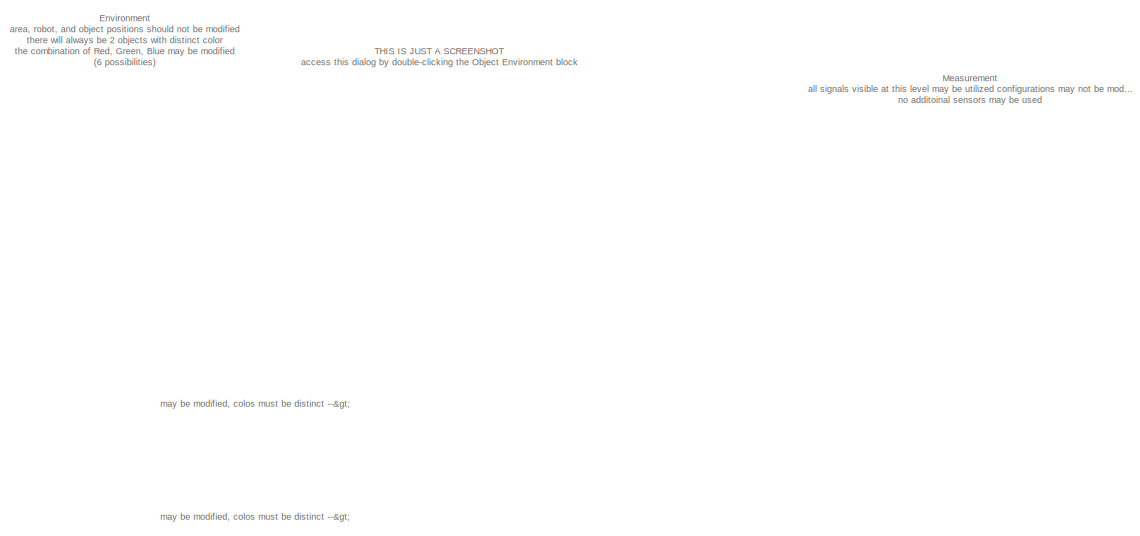
[diagram: root canvas - part 1/4, top center region]
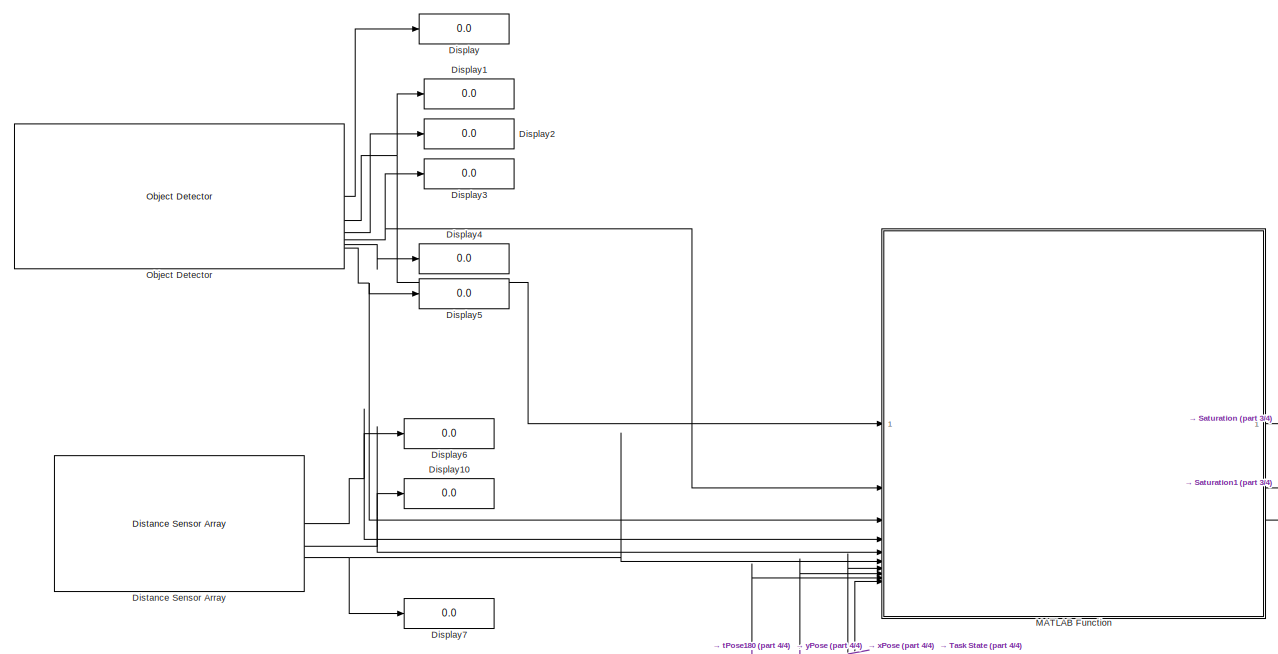
[diagram: root canvas - part 2/4, full width, middle band]
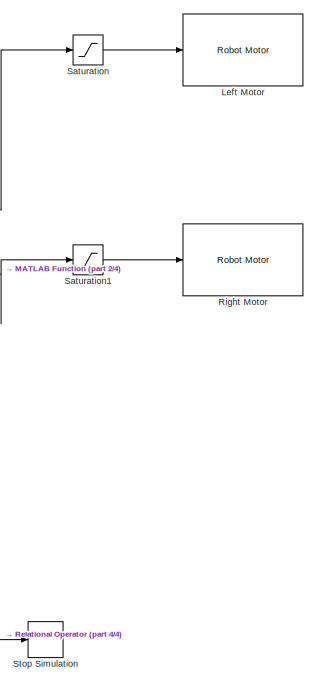
[diagram: root canvas - part 3/4, bottom right region]
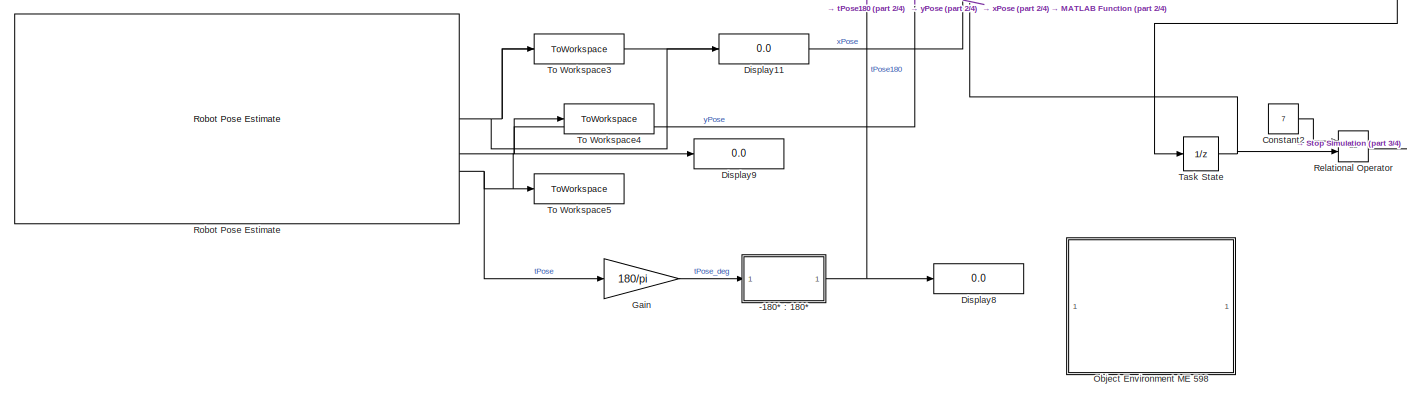
[diagram: root canvas - part 4/4, full width, bottom band]
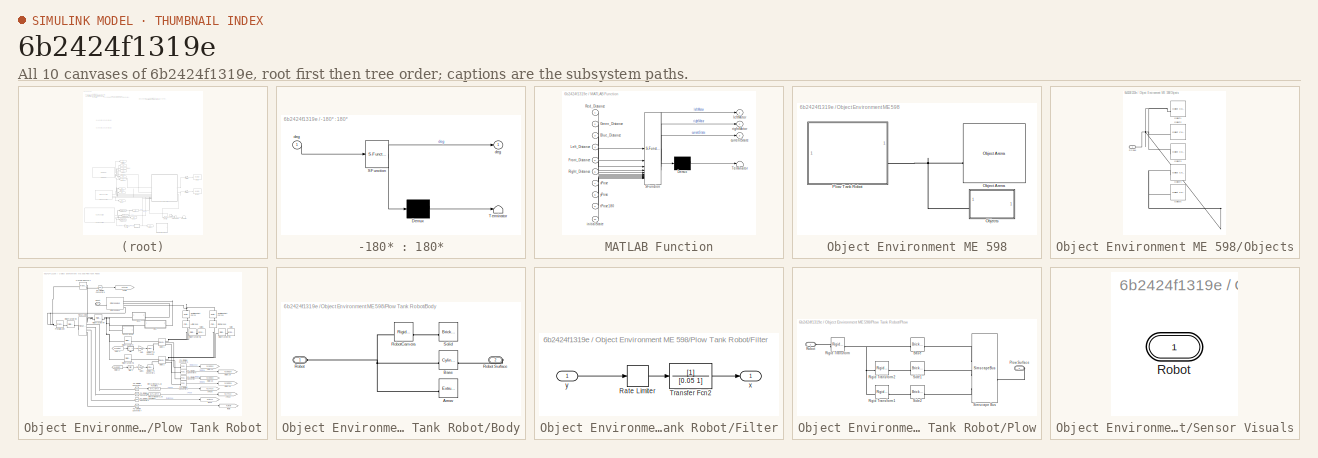
[diagram: thumbnail index - all 10 canvases of the model, root first then tree order]
MODEL slx_6b2424f1319e
KIND model
CONFIG AbsTol = auto
CONFIG EnableMultiTasking = off
CONFIG FixedStep = auto
CONFIG InitFcn = RPInit
CONFIG MaxStep = auto
CONFIG MinStep = auto
CONFIG RelTol = 1e-3
CONFIG SampleTimeConstraint = Unconstrained
CONFIG SolverName = ode23t
CONFIG StartTime = 0.0
CONFIG StopTime = inf
WORKSPACE source: mxarray member
WORKSPACE mapForSim: object (value not decoded)
WORKSPACE occGrid: robotics.BinaryOccupancyGrid (value not decoded)
BLOCK [SubSystem] -180* : 180*
  ErrorFcn = Stateflow.Translate.translate
  PermitHierarchicalResolution = ExplicitOnly
  SFBlockType = MATLAB Function
  TreatAsAtomicUnit = on
BLOCK [Demux] -180* : 180*/ Demux 
  Outputs = 1
BLOCK [S-Function] -180* : 180*/ SFunction 
  EnableBusSupport = on
  FunctionName = sf_sfun
  PortCounts = [1 2]
  SFcnIsStateOwnerBlock = off
  SFunctionDeploymentMode = off
  Tag = Stateflow S-Function 4
BLOCK [Terminator] -180* : 180*/ Terminator 
BLOCK [Outport] -180* : 180*/deg
BLOCK [Inport] -180* : 180*/deg 
BLOCK [Constant] Constant2
  Value = 7
BLOCK [Display] Display
  Decimation = 1
BLOCK [Display] Display1
  Decimation = 1
BLOCK [Display] Display10
  Decimation = 1
BLOCK [Display] Display11
  Decimation = 1
BLOCK [Display] Display2
  Decimation = 1
BLOCK [Display] Display3
  Decimation = 1
BLOCK [Display] Display4
  Decimation = 1
BLOCK [Display] Display5
  Decimation = 1
BLOCK [Display] Display6
  Decimation = 1
BLOCK [Display] Display7
  Decimation = 1
BLOCK [Display] Display8
  Decimation = 1
BLOCK [Display] Display9
  Decimation = 1
BLOCK [Reference] Distance Sensor Array  REF=ME598_ProjectLibrary/Distance Sensor Array
  SourceBlock = ME598_ProjectLibrary/Distance Sensor Array
  SourceType = Distance Sensor Array
BLOCK [Gain] Gain
  Gain = 180/pi
BLOCK [Reference] Left Motor  REF=RoboticsPlayground/Basic Sensors and Actuators/Robot Motor
  SourceBlock = RoboticsPlayground/Basic Sensors and Actuators/Robot Motor
  SourceProductName = Robotics Playground
  SourceType = RP Robot Motor
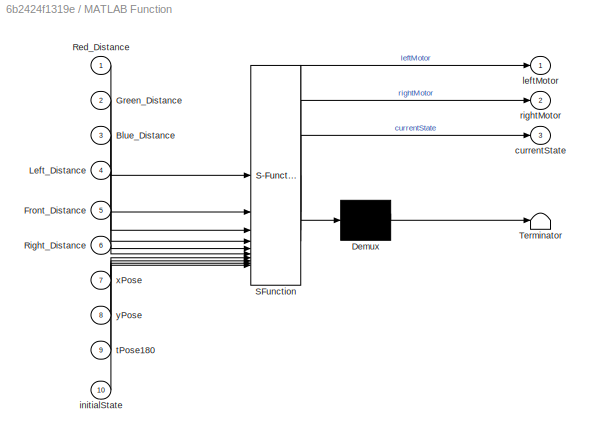
BLOCK [SubSystem] MATLAB Function
  ErrorFcn = Stateflow.Translate.translate
  PermitHierarchicalResolution = ExplicitOnly
  SFBlockType = MATLAB Function
  TreatAsAtomicUnit = on
BLOCK [Demux] MATLAB Function/ Demux 
  Outputs = 1
BLOCK [S-Function] MATLAB Function/ SFunction 
  EnableBusSupport = on
  FunctionName = sf_sfun
  PortCounts = [10 4]
  SFcnIsStateOwnerBlock = off
  SFunctionDeploymentMode = off
  Tag = Stateflow S-Function 2
BLOCK [Terminator] MATLAB Function/ Terminator 
BLOCK [Inport] MATLAB Function/Blue_Distance
  Port = 3
BLOCK [Inport] MATLAB Function/Front_Distance
  Port = 5
BLOCK [Inport] MATLAB Function/Green_Distance
  Port = 2
BLOCK [Inport] MATLAB Function/Left_Distance
  Port = 4
BLOCK [Inport] MATLAB Function/Red_Distance
BLOCK [Inport] MATLAB Function/Right_Distance
  Port = 6
BLOCK [Outport] MATLAB Function/currentState
  Port = 3
BLOCK [Inport] MATLAB Function/initialState
  Port = 10
BLOCK [Outport] MATLAB Function/leftMotor
BLOCK [Outport] MATLAB Function/rightMotor
  Port = 2
BLOCK [Inport] MATLAB Function/tPose180
  Port = 9
BLOCK [Inport] MATLAB Function/xPose
  Port = 7
BLOCK [Inport] MATLAB Function/yPose
  Port = 8
BLOCK [Reference] Object Detector  REF=ME598_ProjectLibrary/Object Detector
  SourceBlock = ME598_ProjectLibrary/Object Detector
  SourceType = Object Detector
BLOCK [SubSystem] Object Environment ME 598
  CopyFcn = set_param(gcs,'InitFcn','RPInit');\nset_param(gcs,'Solver','ode23t');\nset_param(gcs, 'EnablePacing', 'on')\nset_param(gcs, 'PacingRate', 1)
BLOCK [Reference] Object Environment ME 598/Object Arena  REF=RP_Simulator_Components/Object Arena
  SourceBlock = RP_Simulator_Components/Object Arena
  SourceType = RP Grid Arena
BLOCK [SubSystem] Object Environment ME 598/Objects
BLOCK [Reference] Object Environment ME 598/Objects/Object1  REF=RP_Simulator_Components/Object Contact-Plow Robot
  SourceBlock = RP_Simulator_Components/Object Contact-Plow Robot
  SourceType = RP Rectangle-Disc obstacle
BLOCK [Reference] Object Environment ME 598/Objects/Object2  REF=RP_Simulator_Components/Object Contact-Plow Robot
  Commented = on
  SourceBlock = RP_Simulator_Components/Object Contact-Plow Robot
  SourceType = RP Rectangle-Disc obstacle
BLOCK [Reference] Object Environment ME 598/Objects/Object3  REF=RP_Simulator_Components/Object Contact-Plow Robot
  SourceBlock = RP_Simulator_Components/Object Contact-Plow Robot
  SourceType = RP Rectangle-Disc obstacle
BLOCK [Reference] Object Environment ME 598/Objects/Object4  REF=RP_Simulator_Components/Object Contact-Plow Robot
  Commented = on
  SourceBlock = RP_Simulator_Components/Object Contact-Plow Robot
  SourceType = RP Rectangle-Disc obstacle
BLOCK [Reference] Object Environment ME 598/Objects/Object5  REF=RP_Simulator_Components/Object Contact-Plow Robot
  Commented = on
  SourceBlock = RP_Simulator_Components/Object Contact-Plow Robot
  SourceType = RP Rectangle-Disc obstacle
BLOCK [PMIOPort] Object Environment ME 598/Objects/RP-Bus
  Side = Left
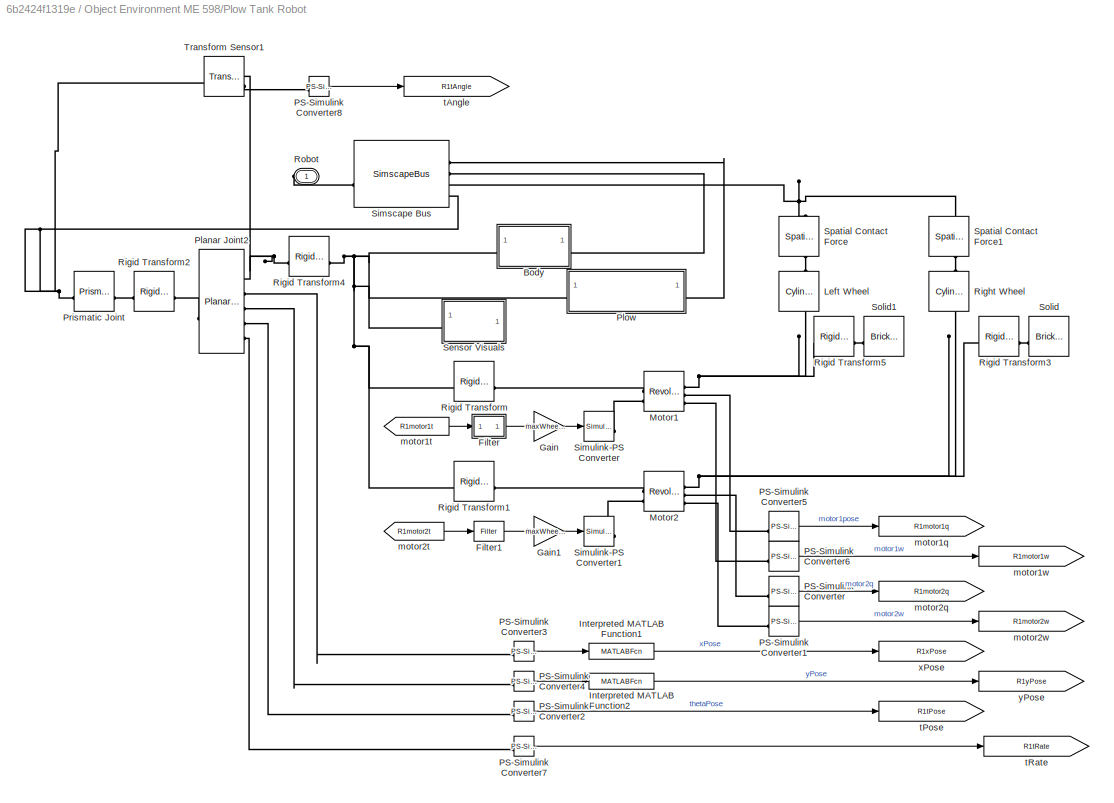
BLOCK [SubSystem] Object Environment ME 598/Plow Tank Robot
  AncestorBlock = RoboticsPlayground/Environments/Object Environment/Plow Tank Robot
BLOCK [SubSystem] Object Environment ME 598/Plow Tank Robot/Body
BLOCK [Reference] Object Environment ME 598/Plow Tank Robot/Body/Arrow  REF=sm_lib/Body Elements/Extruded Solid
  SourceBlock = sm_lib/Body Elements/Extruded Solid
  SourceType = Extruded Solid
BLOCK [Reference] Object Environment ME 598/Plow Tank Robot/Body/Base  REF=sm_lib/Body Elements/Cylindrical Solid
  SourceBlock = sm_lib/Body Elements/Cylindrical Solid
  SourceType = Cylindrical Solid
BLOCK [PMIOPort] Object Environment ME 598/Plow Tank Robot/Body/Robot
  Side = Left
BLOCK [PMIOPort] Object Environment ME 598/Plow Tank Robot/Body/Robot Surface
  Port = 2
  Side = Right
BLOCK [Reference] Object Environment ME 598/Plow Tank Robot/Body/RobotCamera  REF=sm_lib/Frames and
Transforms/Rigid
Transform
  SourceBlock = sm_lib/Frames and\nTransforms/Rigid\nTransform
  SourceType = Rigid\nTransform
BLOCK [Reference] Object Environment ME 598/Plow Tank Robot/Body/Solid  REF=sm_lib/Body Elements/Brick Solid
  SourceBlock = sm_lib/Body Elements/Brick Solid
  SourceType = Brick Solid
BLOCK [SubSystem] Object Environment ME 598/Plow Tank Robot/Filter
BLOCK [RateLimiter] Object Environment ME 598/Plow Tank Robot/Filter/Rate Limiter
  FallingSlewLimit = -300
  RisingSlewLimit = 300
  SampleTimeMode = inherited
BLOCK [TransferFcn] Object Environment ME 598/Plow Tank Robot/Filter/Transfer Fcn2
  Denominator = [0.05 1]
BLOCK [Outport] Object Environment ME 598/Plow Tank Robot/Filter/x
  VectorParamsAs1DForOutWhenUnconnected = off
BLOCK [Inport] Object Environment ME 598/Plow Tank Robot/Filter/y
BLOCK [Reference] Object Environment ME 598/Plow Tank Robot/Filter1  REF=RP_Simulator_Components/Contact Tank Robot/Filter
  SourceBlock = RP_Simulator_Components/Contact Tank Robot/Filter
  SourceType = SubSystem
BLOCK [Gain] Object Environment ME 598/Plow Tank Robot/Gain
  Gain = maxWheelTorque/127
BLOCK [Gain] Object Environment ME 598/Plow Tank Robot/Gain1
  Gain = maxWheelTorque/127
BLOCK [MATLABFcn] Object Environment ME 598/Plow Tank Robot/Interpreted MATLAB Function1
  MATLABFcn = u+floorSize(1)/2
BLOCK [MATLABFcn] Object Environment ME 598/Plow Tank Robot/Interpreted MATLAB Function2
  MATLABFcn = u+floorSize(2)/2
BLOCK [Reference] Object Environment ME 598/Plow Tank Robot/Left Wheel  REF=sm_lib/Body Elements/Cylindrical Solid
  NameLocation = right
  SourceBlock = sm_lib/Body Elements/Cylindrical Solid
  SourceType = Cylindrical Solid
BLOCK [Reference] Object Environment ME 598/Plow Tank Robot/Motor1  REF=sm_lib/Joints/Revolute Joint
  SourceBlock = sm_lib/Joints/Revolute Joint
  SourceType = Revolute Joint
BLOCK [Reference] Object Environment ME 598/Plow Tank Robot/Motor2  REF=sm_lib/Joints/Revolute Joint
  SourceBlock = sm_lib/Joints/Revolute Joint
  SourceType = Revolute Joint
BLOCK [Reference] Object Environment ME 598/Plow Tank Robot/PS-Simulink Converter  REF=nesl_utility/PS-Simulink
Converter
  SourceBlock = nesl_utility/PS-Simulink\nConverter
  SourceType = PS-Simulink\nConverter
BLOCK [Reference] Object Environment ME 598/Plow Tank Robot/PS-Simulink Converter1  REF=nesl_utility/PS-Simulink
Converter
  SourceBlock = nesl_utility/PS-Simulink\nConverter
  SourceType = PS-Simulink\nConverter
BLOCK [Reference] Object Environment ME 598/Plow Tank Robot/PS-Simulink Converter2  REF=nesl_utility/PS-Simulink
Converter
  SourceBlock = nesl_utility/PS-Simulink\nConverter
  SourceType = PS-Simulink\nConverter
BLOCK [Reference] Object Environment ME 598/Plow Tank Robot/PS-Simulink Converter3  REF=nesl_utility/PS-Simulink
Converter
  SourceBlock = nesl_utility/PS-Simulink\nConverter
  SourceType = PS-Simulink\nConverter
BLOCK [Reference] Object Environment ME 598/Plow Tank Robot/PS-Simulink Converter4  REF=nesl_utility/PS-Simulink
Converter
  SourceBlock = nesl_utility/PS-Simulink\nConverter
  SourceType = PS-Simulink\nConverter
BLOCK [Reference] Object Environment ME 598/Plow Tank Robot/PS-Simulink Converter5  REF=nesl_utility/PS-Simulink
Converter
  SourceBlock = nesl_utility/PS-Simulink\nConverter
  SourceType = PS-Simulink\nConverter
BLOCK [Reference] Object Environment ME 598/Plow Tank Robot/PS-Simulink Converter6  REF=nesl_utility/PS-Simulink
Converter
  SourceBlock = nesl_utility/PS-Simulink\nConverter
  SourceType = PS-Simulink\nConverter
BLOCK [Reference] Object Environment ME 598/Plow Tank Robot/PS-Simulink Converter7  REF=nesl_utility/PS-Simulink
Converter
  SourceBlock = nesl_utility/PS-Simulink\nConverter
  SourceType = PS-Simulink\nConverter
BLOCK [Reference] Object Environment ME 598/Plow Tank Robot/PS-Simulink Converter8  REF=nesl_utility/PS-Simulink
Converter
  SourceBlock = nesl_utility/PS-Simulink\nConverter
  SourceType = PS-Simulink\nConverter
BLOCK [Reference] Object Environment ME 598/Plow Tank Robot/Planar Joint2  REF=sm_lib/Joints/Planar Joint
  SourceBlock = sm_lib/Joints/Planar Joint
  SourceType = Planar Joint
BLOCK [SubSystem] Object Environment ME 598/Plow Tank Robot/Plow
BLOCK [Reference] Object Environment ME 598/Plow Tank Robot/Plow/Base  REF=sm_lib/Body Elements/Brick Solid
  SourceBlock = sm_lib/Body Elements/Brick Solid
  SourceType = Brick Solid
BLOCK [PMIOPort] Object Environment ME 598/Plow Tank Robot/Plow/Plow Surface
  Port = 2
  Side = Right
BLOCK [Reference] Object Environment ME 598/Plow Tank Robot/Plow/Rigid Transform  REF=sm_lib/Frames and
Transforms/Rigid
Transform
  SourceBlock = sm_lib/Frames and\nTransforms/Rigid\nTransform
  SourceType = Rigid\nTransform
BLOCK [Reference] Object Environment ME 598/Plow Tank Robot/Plow/Rigid Transform1  REF=sm_lib/Frames and
Transforms/Rigid
Transform
  SourceBlock = sm_lib/Frames and\nTransforms/Rigid\nTransform
  SourceType = Rigid\nTransform
BLOCK [Reference] Object Environment ME 598/Plow Tank Robot/Plow/Rigid Transform2  REF=sm_lib/Frames and
Transforms/Rigid
Transform
  SourceBlock = sm_lib/Frames and\nTransforms/Rigid\nTransform
  SourceType = Rigid\nTransform
BLOCK [PMIOPort] Object Environment ME 598/Plow Tank Robot/Plow/Robot
  Side = Left
BLOCK [Reference] Object Environment ME 598/Plow Tank Robot/Plow/Side1  REF=sm_lib/Body Elements/Brick Solid
  SourceBlock = sm_lib/Body Elements/Brick Solid
  SourceType = Brick Solid
BLOCK [Reference] Object Environment ME 598/Plow Tank Robot/Plow/Side2  REF=sm_lib/Body Elements/Brick Solid
  SourceBlock = sm_lib/Body Elements/Brick Solid
  SourceType = Brick Solid
BLOCK [SimscapeBus] Object Environment ME 598/Plow Tank Robot/Plow/Simscape Bus
  HierarchyStrings = Base;Side1;Side2
BLOCK [Reference] Object Environment ME 598/Plow Tank Robot/Prismatic Joint  REF=sm_lib/Joints/Prismatic
Joint
  SourceBlock = sm_lib/Joints/Prismatic\nJoint
  SourceType = Prismatic\nJoint
BLOCK [Reference] Object Environment ME 598/Plow Tank Robot/Right Wheel  REF=sm_lib/Body Elements/Cylindrical Solid
  NameLocation = right
  SourceBlock = sm_lib/Body Elements/Cylindrical Solid
  SourceType = Cylindrical Solid
BLOCK [Reference] Object Environment ME 598/Plow Tank Robot/Rigid Transform  REF=sm_lib/Frames and
Transforms/Rigid
Transform
  SourceBlock = sm_lib/Frames and\nTransforms/Rigid\nTransform
  SourceType = Rigid\nTransform
BLOCK [Reference] Object Environment ME 598/Plow Tank Robot/Rigid Transform1  REF=sm_lib/Frames and
Transforms/Rigid
Transform
  SourceBlock = sm_lib/Frames and\nTransforms/Rigid\nTransform
  SourceType = Rigid\nTransform
BLOCK [Reference] Object Environment ME 598/Plow Tank Robot/Rigid Transform2  REF=sm_lib/Frames and
Transforms/Rigid
Transform
  SourceBlock = sm_lib/Frames and\nTransforms/Rigid\nTransform
  SourceType = Rigid\nTransform
BLOCK [Reference] Object Environment ME 598/Plow Tank Robot/Rigid Transform3  REF=sm_lib/Frames and
Transforms/Rigid
Transform
  SourceBlock = sm_lib/Frames and\nTransforms/Rigid\nTransform
  SourceType = Rigid\nTransform
BLOCK [Reference] Object Environment ME 598/Plow Tank Robot/Rigid Transform4  REF=sm_lib/Frames and
Transforms/Rigid
Transform
  SourceBlock = sm_lib/Frames and\nTransforms/Rigid\nTransform
  SourceType = Rigid\nTransform
BLOCK [Reference] Object Environment ME 598/Plow Tank Robot/Rigid Transform5  REF=sm_lib/Frames and
Transforms/Rigid
Transform
  SourceBlock = sm_lib/Frames and\nTransforms/Rigid\nTransform
  SourceType = Rigid\nTransform
BLOCK [PMIOPort] Object Environment ME 598/Plow Tank Robot/Robot
  Side = Right
BLOCK [SubSystem] Object Environment ME 598/Plow Tank Robot/Sensor Visuals
BLOCK [PMIOPort] Object Environment ME 598/Plow Tank Robot/Sensor Visuals/Robot
  Side = Left
BLOCK [SimscapeBus] Object Environment ME 598/Plow Tank Robot/Simscape Bus
  HierarchyStrings = PlowSurface;RobotSurface;FloorSurface;Ref
  NameLocation = top
BLOCK [Reference] Object Environment ME 598/Plow Tank Robot/Simulink-PS Converter  REF=nesl_utility/Simulink-PS
Converter
  SourceBlock = nesl_utility/Simulink-PS\nConverter
  SourceType = Simulink-PS\nConverter
BLOCK [Reference] Object Environment ME 598/Plow Tank Robot/Simulink-PS Converter1  REF=nesl_utility/Simulink-PS
Converter
  SourceBlock = nesl_utility/Simulink-PS\nConverter
  SourceType = Simulink-PS\nConverter
BLOCK [Reference] Object Environment ME 598/Plow Tank Robot/Solid  REF=sm_lib/Body Elements/Brick Solid
  NameLocation = top
  SourceBlock = sm_lib/Body Elements/Brick Solid
  SourceType = Brick Solid
BLOCK [Reference] Object Environment ME 598/Plow Tank Robot/Solid1  REF=sm_lib/Body Elements/Brick Solid
  NameLocation = top
  SourceBlock = sm_lib/Body Elements/Brick Solid
  SourceType = Brick Solid
BLOCK [Reference] Object Environment ME 598/Plow Tank Robot/Spatial Contact Force  REF=sm_lib/Forces and
Torques/Spatial
Contact Force
  NameLocation = left
  SourceBlock = sm_lib/Forces and\nTorques/Spatial\nContact Force
  SourceType = Spatial\nContact Force
BLOCK [Reference] Object Environment ME 598/Plow Tank Robot/Spatial Contact Force1  REF=sm_lib/Forces and
Torques/Spatial
Contact Force
  NameLocation = left
  SourceBlock = sm_lib/Forces and\nTorques/Spatial\nContact Force
  SourceType = Spatial\nContact Force
BLOCK [Reference] Object Environment ME 598/Plow Tank Robot/Transform Sensor1  REF=sm_lib/Frames and
Transforms/Transform
Sensor
  SourceBlock = sm_lib/Frames and\nTransforms/Transform\nSensor
  SourceType = Transform\nSensor
BLOCK [Goto] Object Environment ME 598/Plow Tank Robot/motor1q
  GotoTag = R1motor1q
  TagVisibility = global
BLOCK [From] Object Environment ME 598/Plow Tank Robot/motor1t
  GotoTag = R1motor1t
  TagVisibility = global
BLOCK [Goto] Object Environment ME 598/Plow Tank Robot/motor1w
  GotoTag = R1motor1w
  TagVisibility = global
BLOCK [Goto] Object Environment ME 598/Plow Tank Robot/motor2q
  GotoTag = R1motor2q
  TagVisibility = global
BLOCK [From] Object Environment ME 598/Plow Tank Robot/motor2t
  GotoTag = R1motor2t
  TagVisibility = global
BLOCK [Goto] Object Environment ME 598/Plow Tank Robot/motor2w
  GotoTag = R1motor2w
  TagVisibility = global
BLOCK [Goto] Object Environment ME 598/Plow Tank Robot/tAngle
  GotoTag = R1tAngle
  TagVisibility = global
BLOCK [Goto] Object Environment ME 598/Plow Tank Robot/tPose
  GotoTag = R1tPose
  TagVisibility = global
BLOCK [Goto] Object Environment ME 598/Plow Tank Robot/tRate
  GotoTag = R1tRate
  TagVisibility = global
BLOCK [Goto] Object Environment ME 598/Plow Tank Robot/xPose
  GotoTag = R1xPose
  TagVisibility = global
BLOCK [Goto] Object Environment ME 598/Plow Tank Robot/yPose
  GotoTag = R1yPose
  TagVisibility = global
BLOCK [RelationalOperator] Relational Operator
  InputSameDT = off
  Operator = ==
  OutDataTypeStr = boolean
  RndMeth = Simplest
BLOCK [Reference] Right Motor  REF=RoboticsPlayground/Basic Sensors and Actuators/Robot Motor
  SourceBlock = RoboticsPlayground/Basic Sensors and Actuators/Robot Motor
  SourceProductName = Robotics Playground
  SourceType = RP Robot Motor
BLOCK [Reference] Robot Pose Estimate  REF=ME598_ProjectLibrary/Robot Pose Estimate
  SourceBlock = ME598_ProjectLibrary/Robot Pose Estimate
  SourceType = Robot Pose Estimate
BLOCK [Saturate] Saturation
  LowerLimit = -127
  UpperLimit = 127
BLOCK [Saturate] Saturation1
  LowerLimit = -127
  UpperLimit = 127
BLOCK [Stop] Stop Simulation
BLOCK [UnitDelay] Task State
  HasFrameUpgradeWarning = on
  SampleTime = -1
BLOCK [ToWorkspace] To Workspace3
  FixptAsFi = on
  MaxDataPoints = inf
  SampleTime = -1
  VariableName = xPose
BLOCK [ToWorkspace] To Workspace4
  FixptAsFi = on
  MaxDataPoints = inf
  SampleTime = -1
  VariableName = yPose
BLOCK [ToWorkspace] To Workspace5
  FixptAsFi = on
  MaxDataPoints = inf
  SampleTime = -1
  VariableName = tPose
ANNOTATION (root): may be modified, colos must be distinct -->
ANNOTATION (root): Environment area, robot, and object positions should not be modified there will always be 2 objects with distinct color the combination of Red, Green, Blue may be modified (6 possibilities)
ANNOTATION (root): Measurement all signals visible at this level may be utilized configurations may not be modified no additoinal sensors may be used
ANNOTATION (root): THIS IS JUST A SCREENSHOT access this dialog by double-clicking the Object Environment block
NET -180* : 180*:1 -> Display8:1, MATLAB Function:9
LINE Constant2:1 -> Relational Operator:1
NET Distance Sensor Array:1 -> Display6:1, MATLAB Function:4
NET Distance Sensor Array:2 -> Display10:1, MATLAB Function:5
NET Distance Sensor Array:3 -> Display7:1, MATLAB Function:6
LINE Gain:1 -> -180* : 180*:1
LINE MATLAB Function:1 -> Saturation:1
LINE MATLAB Function:2 -> Saturation1:1
LINE MATLAB Function:3 -> Task State:1
LINE Object Detector:1 -> Display:1
NET Object Detector:2 -> Display1:1, MATLAB Function:1
LINE Object Detector:3 -> Display2:1
NET Object Detector:4 -> Display3:1, MATLAB Function:2
LINE Object Detector:5 -> Display4:1
NET Object Detector:6 -> Display5:1, MATLAB Function:3
LINE Relational Operator:1 -> Stop Simulation:1
NET Robot Pose Estimate:1 -> Display11:1, MATLAB Function:7, To Workspace3:1
NET Robot Pose Estimate:2 -> Display9:1, MATLAB Function:8, To Workspace4:1
NET Robot Pose Estimate:3 -> Gain:1, To Workspace5:1
LINE Saturation1:1 -> Right Motor:1
LINE Saturation:1 -> Left Motor:1
NET Task State:1 -> MATLAB Function:10, Relational Operator:2
note: NET lines group one-source signal fan-out (src -> all destinations, sorted); 1:1 wires keep LINE
CHART MATLAB Function states=1 transitions=1
  STATE_LABEL 'eML_blk_kernel()'
  STATE_LABEL 'SCRIPT:\nfunction [leftMotor, rightMotor, currentState] = sortObjects(Red_Distance, Green_Distance, Blue_Distance, Left_Distance, Front_Distance, Right_Distance, xPose, yPose, tPose180, initialState)\n\ncurrentState = initialState;\n% initialState == 0\n\n% Functions to define motor commands for turning left & right.\n    function [leftMotor, rightMotor] = rotateCW()\n        leftMotor = 75;\n        right...<+3608ch>'
CHART -180* : 180* states=1 transitions=1
  STATE_LABEL 'eML_blk_kernel()'
  STATE_LABEL 'SCRIPT:\nfunction deg = degWrap(deg)\n\n% % Convert radians to degrees\n% deg = 180/pi * rad;\n\n\n% Wrap degree value to the range -180* : +180*\nfor idx = 1:length(deg)\n    while deg(idx) < -180\n        deg(idx) = deg(idx)+360;\n    end\n    \n    while deg(idx) > 180\n        deg(idx) = deg(idx)-360;\n    end\nend\n\nreturn\n'
CHART  states=0 transitions=0
CHART  states=0 transitions=0
